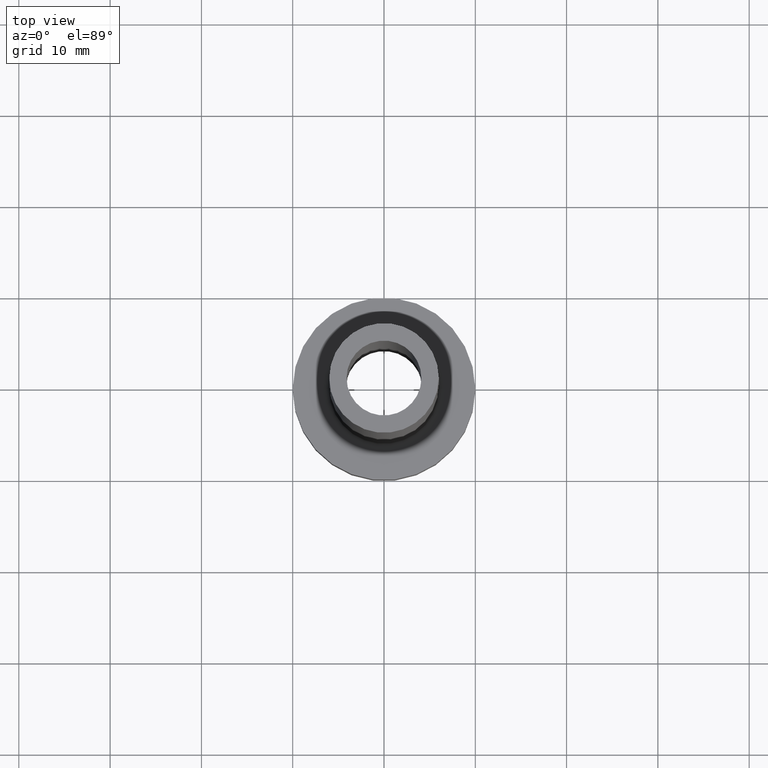
[diagram: clean part render]
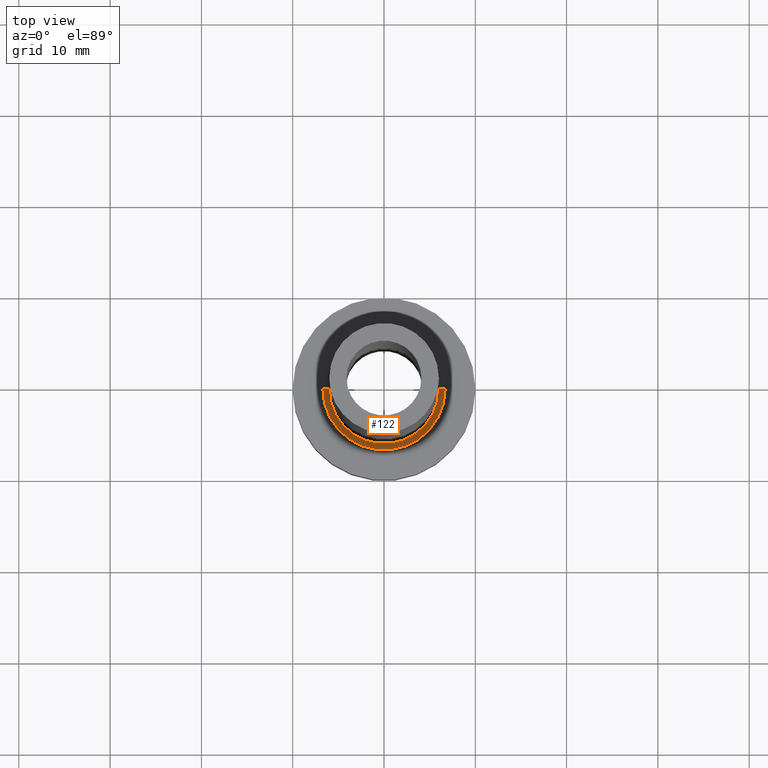
[diagram: same view with one face highlighted and labeled with its STEP entity id]
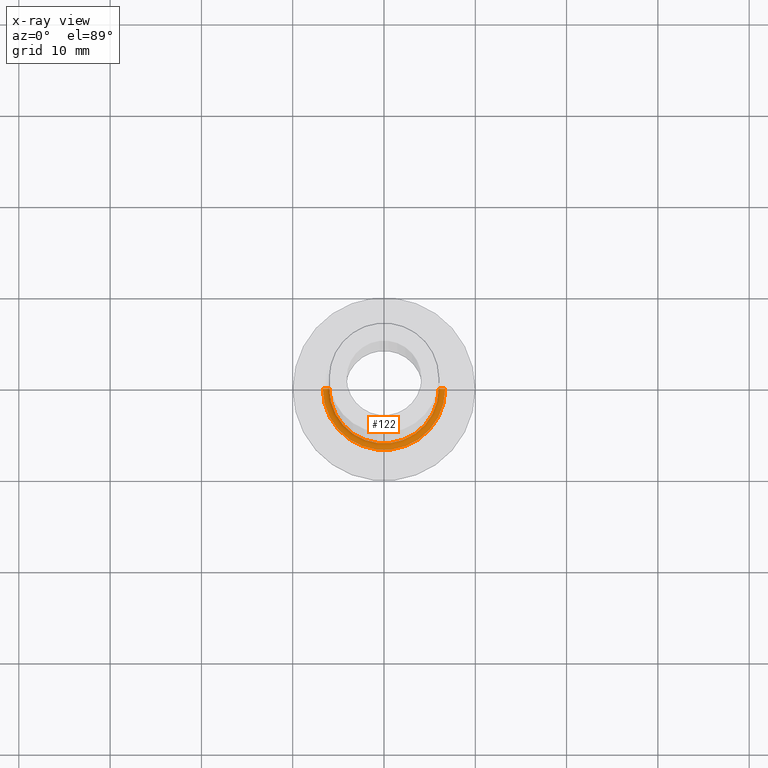
[diagram: x-ray of the same camera — body ghosted, the highlighted face saturated]
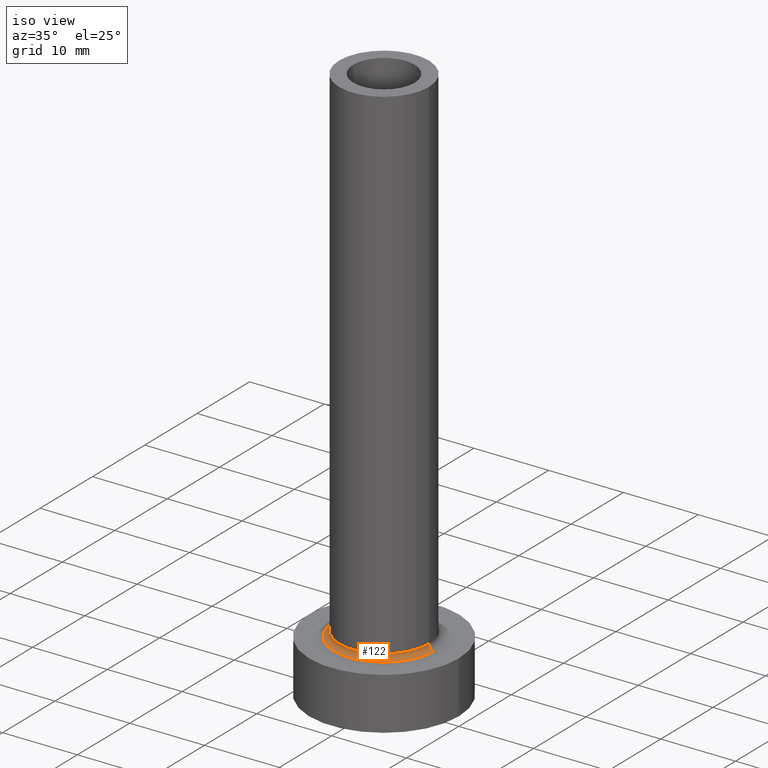
[diagram: same view with one face highlighted and labeled with its STEP entity id]
A machine part, top view. The second image highlights one B-rep face of the part: STEP entity #122.
The next image is the same camera in x-ray: the body ghosted, the highlighted face saturated — about 0% of this face is hidden behind the body in this view.
A second angle (iso view) of the same face is appended — the face is thin or edge-on in the first view.
In plain terms, the highlighted toroidal blend (fillet) surface has major radius 6.7 mm and minor (blend) radius 0.7 mm.
Its self-contained STEP definition (entity closure, byte-faithful):
#7 = ORIENTED_EDGE ( 'NONE', *, *, #398, .F. ) ;
#11 = ORIENTED_EDGE ( 'NONE', *, *, #242, .F. ) ;
#18 = CARTESIAN_POINT ( 'NONE',  ( 6.700000000000001066, 0.000000000000000000, 7.699999999999998401 ) ) ;
#38 = AXIS2_PLACEMENT_3D ( 'NONE', #377, #375, #267 ) ;
#40 = CARTESIAN_POINT ( 'NONE',  ( 0.000000000000000000, 0.000000000000000000, 7.699999999999998401 ) ) ;
#42 = AXIS2_PLACEMENT_3D ( 'NONE', #40, #426, #180 ) ;
#64 = CARTESIAN_POINT ( 'NONE',  ( 6.700000000000001066, 0.000000000000000000, 6.999999999999999112 ) ) ;
#68 = CARTESIAN_POINT ( 'NONE',  ( -6.000000000000000888, 0.000000000000000000, 7.699999999999998401 ) ) ;
#72 = VERTEX_POINT ( 'NONE', #68 ) ;
#82 = TOROIDAL_SURFACE ( 'NONE', #345, 6.700000000000001066, 0.6999999999999999556 ) ;
#88 = CIRCLE ( 'NONE', #355, 0.7000000000000000666 ) ;
#91 = VERTEX_POINT ( 'NONE', #64 ) ;
#94 = CARTESIAN_POINT ( 'NONE',  ( 6.000000000000000888, 7.347880794884120722E-16, 7.699999999999998401 ) ) ;
#112 = VERTEX_POINT ( 'NONE', #94 ) ;
#116 = DIRECTION ( 'NONE',  ( -1.000000000000000000, 1.224646799147353454E-16, 0.000000000000000000 ) ) ;
#122 = ADVANCED_FACE ( 'NONE', ( #460 ), #82, .F. ) ;
#153 = VERTEX_POINT ( 'NONE', #193 ) ;
#170 = CIRCLE ( 'NONE', #433, 0.7000000000000000666 ) ;
#174 = DIRECTION ( 'NONE',  ( 0.000000000000000000, 0.000000000000000000, 1.000000000000000000 ) ) ;
#180 = DIRECTION ( 'NONE',  ( 1.000000000000000000, 0.000000000000000000, 0.000000000000000000 ) ) ;
#193 = CARTESIAN_POINT ( 'NONE',  ( -6.700000000000001066, 8.205133554287267548E-16, 6.999999999999999112 ) ) ;
#205 = DIRECTION ( 'NONE',  ( 1.224646799147353207E-16, 1.000000000000000000, -0.000000000000000000 ) ) ;
#217 = CARTESIAN_POINT ( 'NONE',  ( 0.000000000000000000, 0.000000000000000000, 7.699999999999998401 ) ) ;
#224 = EDGE_CURVE ( 'NONE', #91, #153, #236, .T. ) ;
#230 = CIRCLE ( 'NONE', #42, 6.000000000000000888 ) ;
#234 = CARTESIAN_POINT ( 'NONE',  ( -6.700000000000001066, 8.205133554287267548E-16, 7.699999999999998401 ) ) ;
#236 = CIRCLE ( 'NONE', #38, 6.700000000000001066 ) ;
#242 = EDGE_CURVE ( 'NONE', #112, #91, #170, .T. ) ;
#247 = DIRECTION ( 'NONE',  ( 1.000000000000000000, 0.000000000000000000, 0.000000000000000000 ) ) ;
#251 = EDGE_CURVE ( 'NONE', #72, #153, #88, .T. ) ;
#267 = DIRECTION ( 'NONE',  ( 1.000000000000000000, 0.000000000000000000, 0.000000000000000000 ) ) ;
#302 = ORIENTED_EDGE ( 'NONE', *, *, #251, .T. ) ;
#345 = AXIS2_PLACEMENT_3D ( 'NONE', #217, #174, #247 ) ;
#355 = AXIS2_PLACEMENT_3D ( 'NONE', #234, #205, #116 ) ;
#375 = DIRECTION ( 'NONE',  ( -0.000000000000000000, -0.000000000000000000, -1.000000000000000000 ) ) ;
#377 = CARTESIAN_POINT ( 'NONE',  ( 0.000000000000000000, 0.000000000000000000, 7.000000000000000000 ) ) ;
#395 = EDGE_LOOP ( 'NONE', ( #7, #302, #402, #11 ) ) ;
#398 = EDGE_CURVE ( 'NONE', #72, #112, #230, .T. ) ;
#402 = ORIENTED_EDGE ( 'NONE', *, *, #224, .F. ) ;
#415 = DIRECTION ( 'NONE',  ( 0.000000000000000000, 0.000000000000000000, -1.000000000000000000 ) ) ;
#419 = DIRECTION ( 'NONE',  ( 0.000000000000000000, -1.000000000000000000, 0.000000000000000000 ) ) ;
#426 = DIRECTION ( 'NONE',  ( 0.000000000000000000, 0.000000000000000000, 1.000000000000000000 ) ) ;
#433 = AXIS2_PLACEMENT_3D ( 'NONE', #18, #419, #415 ) ;
#460 = FACE_OUTER_BOUND ( 'NONE', #395, .T. ) ;